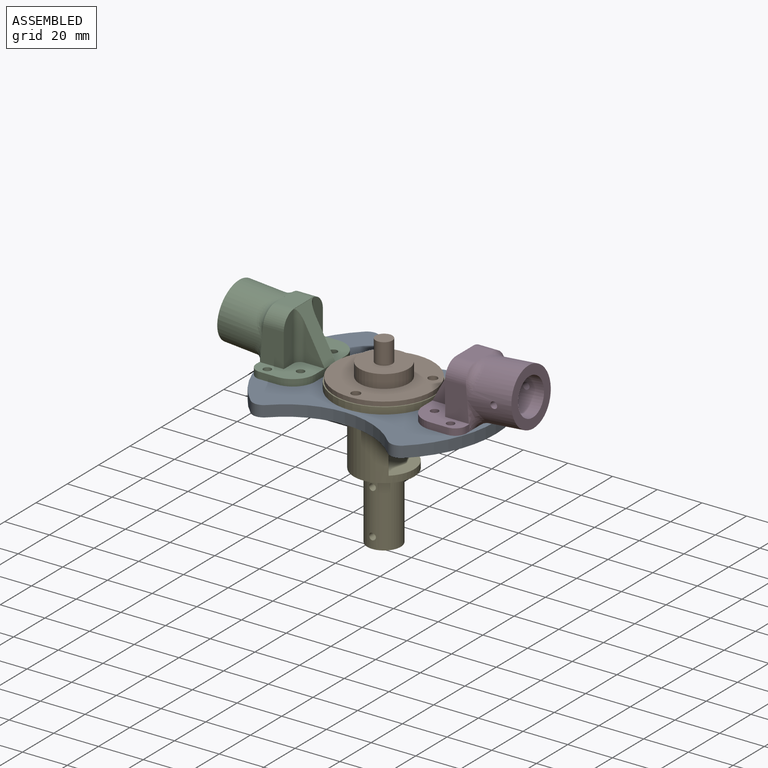
[diagram: assembled view]
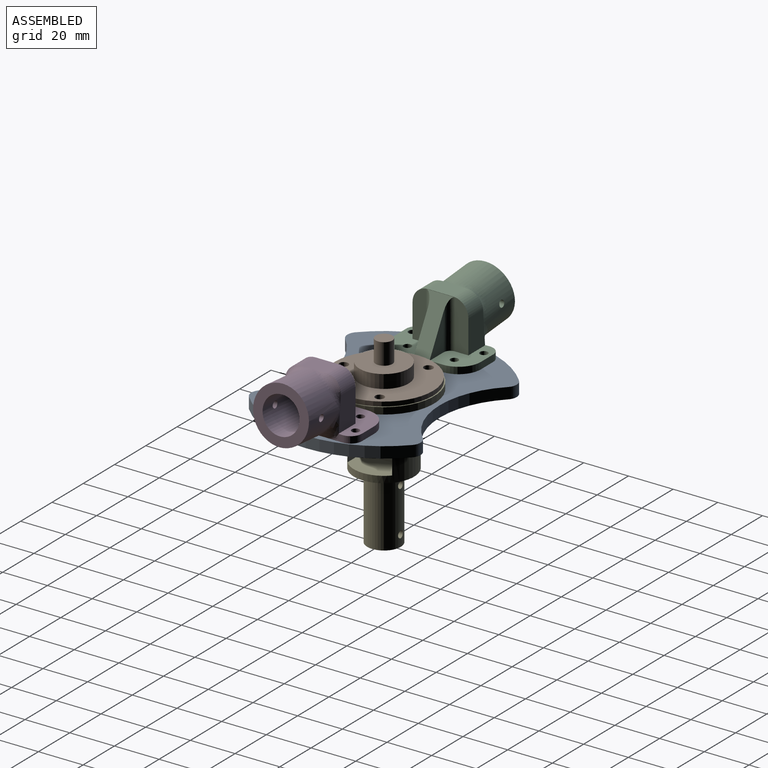
[diagram: assembled view, second angle]
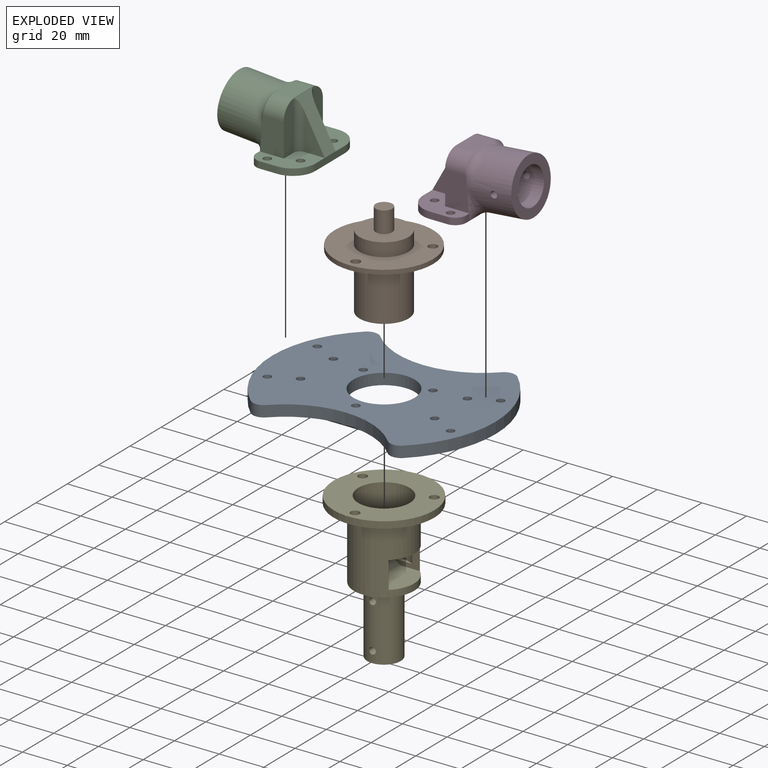
[diagram: exploded view]
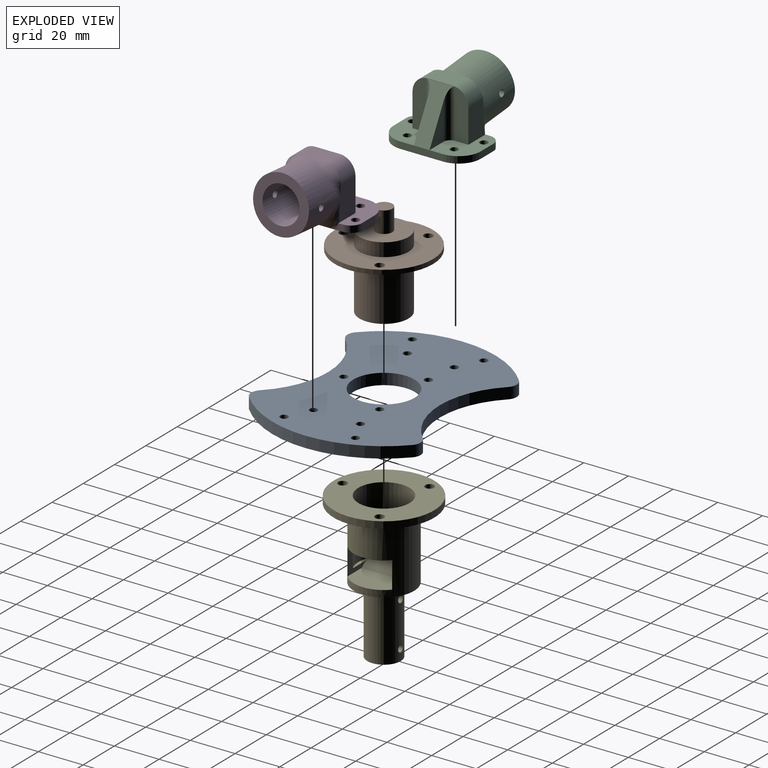
[diagram: exploded view, second angle]
ASSEMBLY  parts=5 mates=4
PART A: 22 faces, bbox 75.8x100x5 mm
  f0: cylinder r=50mm len=73.07mm, axis (0,0,-1), area 409.7mm2, adj f1,f2,f19,f20
  f1: plane 100x75.77mm, normal (0,0,1), area 5047.6mm2, adj f0,f3,f4,f5,f6,f7,f8,f9
  f2: plane 100x75.77mm, normal (0,0,-1), area 5047.6mm2, adj f0,f3,f4,f5,f6,f7,f8,f9
  f3: cylinder r=13.75mm len=27.5mm, axis (0,0,-1), area 432mm2, adj f1,f2
  f4: cylinder r=50mm len=73.07mm, axis (0,0,-1), area 409.7mm2, adj f1,f2,f18,f21
  f5: cylinder r=1.75mm len=5mm, axis (0,0,1), area 55mm2, adj f1,f2
  f6: cylinder r=1.75mm len=5mm, axis (0,0,1), area 55mm2, adj f1,f2
  f7: cylinder r=1.75mm len=5mm, axis (0,0,1), area 55mm2, adj f1,f2
  f8: cylinder r=1.75mm len=5mm, axis (0,0,1), area 55mm2, adj f1,f2
  f9: cylinder r=1.75mm len=5mm, axis (0,0,1), area 55mm2, adj f1,f2
  f10: cylinder r=1.75mm len=5mm, axis (0,0,1), area 55mm2, adj f1,f2
  f11: cylinder r=1.75mm len=5mm, axis (0,0,1), area 55mm2, adj f1,f2
  f12: cylinder r=1.75mm len=5mm, axis (0,0,1), area 55mm2, adj f1,f2
  f13: cylinder r=1.75mm len=5mm, axis (0,0,1), area 55mm2, adj f1,f2
  f14: cylinder r=1.75mm len=5mm, axis (0,0,1), area 55mm2, adj f1,f2
  f15: cylinder r=1.75mm len=5mm, axis (0,0,1), area 55mm2, adj f1,f2
  f16: cylinder r=38.07mm len=54.31mm, axis (0,0,1), area 302.3mm2, adj f1,f2,f18,f19
  f17: cylinder r=38.07mm len=54.31mm, axis (0,0,1), area 302.3mm2, adj f1,f2,f20,f21
  f18: cylinder r=5mm len=6.98mm, axis (0,0,-1), area 38.6mm2, adj f1,f2,f4,f16
  f19: cylinder r=5mm len=6.98mm, axis (0,0,-1), area 38.6mm2, adj f0,f1,f2,f16
  f20: cylinder r=5mm len=6.98mm, axis (0,0,-1), area 38.6mm2, adj f0,f1,f2,f17
  f21: cylinder r=5mm len=6.98mm, axis (0,0,-1), area 38.6mm2, adj f1,f2,f4,f17
PART B: 12 faces, bbox 44x44x42.5 mm
  f0: cylinder r=11mm len=22mm, axis (0,0,-1), area 414.7mm2, adj f1,f6
  f1: plane 22x22mm, normal (0,0,-1), area 336mm2, adj f0,f2
  f2: cylinder r=3.75mm len=9.5mm, axis (0,0,1), area 223.8mm2, adj f1,f3
  f3: plane 7.5x7.5mm, normal (0,0,-1), area 44.2mm2, adj f2
  f4: cylinder r=22mm len=44mm, axis (0,0,-1), area 276.5mm2, adj f5,f6
  f5: plane 44x44mm, normal (0,0,1), area 1102.7mm2, adj f4,f8,f9,f10,f11
  f6: plane 44x44mm, normal (0,0,-1), area 1102.7mm2, adj f0,f4,f9,f10,f11
  f7: plane 22x22mm, normal (0,0,1), area 380.1mm2, adj f8
  f8: cylinder r=11mm len=25mm, axis (0,0,-1), area 1727.9mm2, adj f5,f7
  f9: cylinder r=2mm len=4mm, axis (0,0,-1), area 25.1mm2, adj f5,f6
  f10: cylinder r=2mm len=4mm, axis (0,0,-1), area 25.1mm2, adj f5,f6
  f11: cylinder r=2mm len=4mm, axis (0,0,-1), area 25.1mm2, adj f5,f6
PART C: 47 faces, bbox 44.5x40.7x28.4 mm
  f0: plane 25x22mm, normal (1,0,0), area 244.4mm2, adj f1,f3,f4,f7,f13,f14,f18,f42
  f1: plane 22.89x16mm, normal (0,0,1), area 220.3mm2, adj f0,f2,f4,f15,f16,f17,f24,f25
  f2: plane 19x3mm, normal (1,0,0), area 57mm2, adj f1,f8,f18,f42,f45,f46
  f3: plane 16.02x11.65mm, normal (0,-1,0), area 149.6mm2, adj f0,f14,f18,f28,f35
  f4: plane 16.02x11.65mm, normal (0,1,0), area 149.6mm2, adj f0,f1,f13,f32,f36
  f5: plane 0.35x0.35mm, normal (-1,0,0.09), area 0.1mm2, adj f8,f19,f29
  f6: plane 0.35x0.35mm, normal (-1,0,0.09), area 0.1mm2, adj f8,f15,f31
  f7: plane 12.67x10.37mm, normal (0,0,1), area 95.8mm2, adj f0,f13,f14,f33,f38
  f8: plane 39.76x23.66mm, normal (0,0,-1), area 800.8mm2, adj f2,f5,f6,f16,f17,f20,f21,f22
  f9: cylinder r=8.25mm len=21.36mm, axis (1,0,-0.09), area 1029.5mm2, adj f11,f12,f39
  f10: cylinder r=12.5mm len=26.65mm, axis (1,0,-0.09), area 1327.5mm2, adj f11,f28,f29,f30,f31,f32,f33,f34
  f11: plane 25x24.91mm, normal (-1,0,0.09), area 277mm2, adj f9,f10
  f12: plane 16.5x16.44mm, normal (-1,0,0.09), area 213.8mm2, adj f9
  f13: cylinder r=7mm len=9.32mm, axis (-1,0,0), area 99.1mm2, adj f0,f4,f7,f37
  f14: cylinder r=7mm len=9.32mm, axis (1,0,0), area 99.1mm2, adj f0,f3,f7,f34
  f15: plane 3.08x0.35mm, normal (0,-1,0), area 0.4mm2, adj f1,f6,f16,f32
  f16: plane 3x2mm, normal (-1,0,0), area 6mm2, adj f1,f8,f15,f27
  f17: plane 7.89x3mm, normal (0,1,0), area 23.7mm2, adj f1,f8,f27,f46
  f18: plane 22.89x16mm, normal (0,0,1), area 220.3mm2, adj f0,f2,f3,f19,f20,f21,f22,f23
  f19: plane 3.08x0.35mm, normal (0,1,0), area 0.4mm2, adj f5,f18,f21,f28
  f20: plane 7.89x3mm, normal (0,-1,0), area 23.7mm2, adj f8,f18,f26,f45
  f21: plane 3x2mm, normal (-1,0,0), area 6mm2, adj f8,f18,f19,f26
  f22: cylinder r=1.75mm len=3.5mm, axis (0,0,1), area 33mm2, adj f8,f18
  f23: cylinder r=1.75mm len=3.5mm, axis (0,0,1), area 33mm2, adj f8,f18
  f24: cylinder r=1.75mm len=3.5mm, axis (0,0,1), area 33mm2, adj f1,f8
  f25: cylinder r=1.75mm len=3.5mm, axis (0,0,1), area 33mm2, adj f1,f8
  f26: cylinder r=5mm len=5mm, axis (0,0,1), area 23.6mm2, adj f8,f18,f20,f21
  f27: cylinder r=5mm len=5mm, axis (0,0,1), area 23.6mm2, adj f1,f8,f16,f17
  f28: bspline ~12.57x5.76mm, area 38.1mm2, adj f3,f10,f19,f29
  f29: torus R=17.5mm, axis (-1,0,0.09), area 3.2mm2, adj f5,f10,f28,f30
  f30: bspline ~25.66x5.71mm, area 79mm2, adj f8,f10,f29,f31
  f31: torus R=17.5mm, axis (-1,0,0.09), area 3.2mm2, adj f6,f10,f30,f32
  f32: bspline ~12.57x5.76mm, area 38.1mm2, adj f4,f10,f15,f31
  f33: bspline ~6.88x3.56mm, area 5.4mm2, adj f7,f10,f34
  f34: bspline ~8.57x8.31mm, area 48.9mm2, adj f10,f14,f33,f35
  f35: bspline ~6.86x3.64mm, area 5.3mm2, adj f3,f10,f34
  f36: bspline ~6.86x3.64mm, area 5.3mm2, adj f4,f10,f37
  f37: bspline ~9.05x8.45mm, area 48.9mm2, adj f10,f13,f36,f38
  f38: bspline ~5.5x2.89mm, area 5.4mm2, adj f7,f10,f37
  f39: cylinder r=1.5mm len=4.26mm, axis (0,-1,0), area 40.1mm2, adj f9,f10
  f40: plane 16.42x9mm, normal (0,1,0), area 73.9mm2, adj f1,f42,f43
  f41: plane 16.42x9mm, normal (0,-1,0), area 73.9mm2, adj f18,f42,f44
  f42: plane 21.89x13mm, normal (0.88,0,0.48), area 182.8mm2, adj f0,f2,f40,f41,f43,f44
  f43: cylinder r=3mm len=21.89mm, axis (0,0,1), area 93.8mm2, adj f0,f1,f40,f42
  f44: cylinder r=3mm len=21.89mm, axis (0,0,-1), area 93.8mm2, adj f0,f18,f41,f42
  f45: cylinder r=10mm len=10mm, axis (0,0,-1), area 47.1mm2, adj f2,f8,f18,f20
  f46: cylinder r=10mm len=10mm, axis (0,0,1), area 47.1mm2, adj f1,f2,f8,f17
PART D: 48 faces, bbox 44.5x40.7x28.4 mm
  f0: plane 25x22mm, normal (1,0,0), area 244.4mm2, adj f1,f3,f4,f7,f13,f14,f18,f43
  f1: plane 22.89x16mm, normal (0,0,1), area 220.3mm2, adj f0,f2,f4,f15,f16,f17,f24,f25
  f2: plane 19x3mm, normal (1,0,0), area 57mm2, adj f1,f8,f18,f43,f46,f47
  f3: plane 16.02x11.65mm, normal (0,-1,0), area 149.6mm2, adj f0,f14,f18,f30,f31
  f4: plane 16.02x11.65mm, normal (0,1,0), area 149.6mm2, adj f0,f1,f13,f35,f36
  f5: plane 0.35x0.35mm, normal (-1,0,0.09), area 0.1mm2, adj f8,f19,f32
  f6: plane 0.35x0.35mm, normal (-1,0,0.09), area 0.1mm2, adj f8,f15,f34
  f7: plane 12.67x10.37mm, normal (0,0,1), area 95.8mm2, adj f0,f13,f14,f28,f38
  f8: plane 39.76x23.66mm, normal (0,0,-1), area 800.8mm2, adj f2,f5,f6,f16,f17,f20,f21,f22
  f9: cylinder r=8.25mm len=21.36mm, axis (1,0,-0.09), area 1022.5mm2, adj f11,f12,f39,f40
  f10: cylinder r=12.5mm len=26.65mm, axis (1,0,-0.09), area 1320.4mm2, adj f11,f28,f29,f30,f31,f32,f33,f34
  f11: plane 25x24.91mm, normal (-1,0,0.09), area 277mm2, adj f9,f10
  f12: plane 16.5x16.44mm, normal (-1,0,0.09), area 213.8mm2, adj f9
  f13: cylinder r=7mm len=9.32mm, axis (-1,0,0), area 99.1mm2, adj f0,f4,f7,f37
  f14: cylinder r=7mm len=9.32mm, axis (1,0,0), area 99.1mm2, adj f0,f3,f7,f29
  f15: plane 3.08x0.35mm, normal (0,-1,0), area 0.4mm2, adj f1,f6,f16,f35
  f16: plane 3x2mm, normal (-1,0,0), area 6mm2, adj f1,f8,f15,f27
  f17: plane 7.89x3mm, normal (0,1,0), area 23.7mm2, adj f1,f8,f27,f47
  f18: plane 22.89x16mm, normal (0,0,1), area 220.3mm2, adj f0,f2,f3,f19,f20,f21,f22,f23
  f19: plane 3.08x0.35mm, normal (0,1,0), area 0.4mm2, adj f5,f18,f21,f31
  f20: plane 7.89x3mm, normal (0,-1,0), area 23.7mm2, adj f8,f18,f26,f46
  f21: plane 3x2mm, normal (-1,0,0), area 6mm2, adj f8,f18,f19,f26
  f22: cylinder r=1.75mm len=3.5mm, axis (0,0,1), area 33mm2, adj f8,f18
  f23: cylinder r=1.75mm len=3.5mm, axis (0,0,1), area 33mm2, adj f8,f18
  f24: cylinder r=1.75mm len=3.5mm, axis (0,0,1), area 33mm2, adj f1,f8
  f25: cylinder r=1.75mm len=3.5mm, axis (0,0,1), area 33mm2, adj f1,f8
  f26: cylinder r=5mm len=5mm, axis (0,0,1), area 23.6mm2, adj f8,f18,f20,f21
  f27: cylinder r=5mm len=5mm, axis (0,0,1), area 23.6mm2, adj f1,f8,f16,f17
  f28: bspline ~6.88x3.56mm, area 5.4mm2, adj f7,f10,f29
  f29: bspline ~8.57x8.31mm, area 48.9mm2, adj f10,f14,f28,f30
  f30: bspline ~6.86x3.64mm, area 5.3mm2, adj f3,f10,f29
  f31: bspline ~12.57x5.76mm, area 38.1mm2, adj f3,f10,f19,f32
  f32: torus R=17.5mm, axis (-1,0,0.09), area 3.2mm2, adj f5,f10,f31,f33
  f33: bspline ~25.66x5.71mm, area 79mm2, adj f8,f10,f32,f34
  f34: torus R=17.5mm, axis (-1,0,0.09), area 3.2mm2, adj f6,f10,f33,f35
  f35: bspline ~12.57x5.76mm, area 38.1mm2, adj f4,f10,f15,f34
  f36: bspline ~6.86x3.64mm, area 5.3mm2, adj f4,f10,f37
  f37: bspline ~9.05x8.45mm, area 48.9mm2, adj f10,f13,f36,f38
  f38: bspline ~5.5x2.89mm, area 5.4mm2, adj f7,f10,f37
  f39: cylinder r=1.5mm len=4.3mm, axis (0,-1,0), area 40.6mm2, adj f9,f10
  f40: cylinder r=1.5mm len=4.4mm, axis (0,-1,0), area 41mm2, adj f9,f10
  f41: plane 16.42x9mm, normal (0,1,0), area 73.9mm2, adj f1,f43,f44
  f42: plane 16.42x9mm, normal (0,-1,0), area 73.9mm2, adj f18,f43,f45
  f43: plane 21.89x13mm, normal (0.88,0,0.48), area 182.8mm2, adj f0,f2,f41,f42,f44,f45
  f44: cylinder r=3mm len=21.89mm, axis (0,0,1), area 93.8mm2, adj f0,f1,f41,f43
  f45: cylinder r=3mm len=21.89mm, axis (0,0,-1), area 93.8mm2, adj f0,f18,f42,f43
  f46: cylinder r=10mm len=10mm, axis (0,0,-1), area 47.1mm2, adj f2,f8,f18,f20
  f47: cylinder r=10mm len=10mm, axis (0,0,1), area 47.1mm2, adj f1,f2,f8,f17
PART E: 20 faces, bbox 45x45x65 mm
  f0: cylinder r=7.5mm len=28mm, axis (0,0,-1), area 1290.9mm2, adj f11,f16,f18,f19
  f1: cylinder r=11.5mm len=30mm, axis (0,0,1), area 1925.2mm2, adj f3,f5,f12,f14,f15
  f2: cylinder r=13.5mm len=32mm, axis (0,0,-1), area 2444.1mm2, adj f6,f10,f12,f13,f14,f15
  f3: plane 23x17.18mm, normal (0,0,-1), area 139.3mm2, adj f1,f14,f15,f17
  f4: cylinder r=22.5mm len=45mm, axis (0,0,1), area 424.1mm2, adj f5,f6
  f5: plane 45x45mm, normal (0,0,-1), area 1137.3mm2, adj f1,f4,f7,f8,f9
  f6: plane 45x45mm, normal (0,0,1), area 980.2mm2, adj f2,f4,f7,f8,f9
  f7: cylinder r=2mm len=4mm, axis (0,0,1), area 37.7mm2, adj f5,f6
  f8: cylinder r=2mm len=4mm, axis (0,0,1), area 37.7mm2, adj f5,f6
  f9: cylinder r=2mm len=4mm, axis (0,0,1), area 37.7mm2, adj f5,f6
  f10: plane 27x27mm, normal (0,0,1), area 289mm2, adj f2,f16
  f11: plane 15x15mm, normal (0,0,1), area 176.7mm2, adj f0
  f12: plane 20x7.82mm, normal (0,0,1), area 46.5mm2, adj f1,f2,f14,f15
  f13: plane 20x13.5mm, normal (0,0,-1), area 242.7mm2, adj f2,f14,f15,f17
  f14: plane 13.07x12mm, normal (0,1,0), area 54.4mm2, adj f1,f2,f3,f12,f13,f17
  f15: plane 13.07x12mm, normal (0,-1,0), area 54.4mm2, adj f1,f2,f3,f12,f13,f17
  f16: torus R=9.5mm, axis (0,0,1), area 162.4mm2, adj f0,f10
  f17: cylinder r=5mm len=20mm, axis (0,1,0), area 92.7mm2, adj f3,f13,f14,f15
  f18: cylinder r=1.5mm len=15mm, axis (0,1,0), area 139.9mm2, adj f0
  f19: cylinder r=1.5mm len=15mm, axis (0,1,0), area 139.9mm2, adj f0
PLACE A rot(axis=(0,0,1),90deg) t=(44.1,-80.47,-25.42)mm
PLACE B rot(axis=(1,0,0),180deg) t=(44.1,-80.47,-9.42)mm
PLACE C t=(8,-80.47,-7.92)mm
PLACE D rot(axis=(0,0,1),180deg) t=(80.21,-80.47,-7.92)mm
PLACE E rot(axis=(0,1,0),180deg) t=(44.1,-80.47,-20.42)mm
MATE fastened E.f1 <-> B.f0  axis (0,0,1) through (44.1,-80.47,-17.42)mm
MATE fastened A.f10 <-> D.f22  axis (0,0,1) through (85.1,-64.47,-20.42)mm
MATE fastened A.f14 <-> C.f24  axis (0,0,1) through (3.1,-64.47,-20.42)mm
MATE fastened E.f4 <-> A.f3  axis (0,0,-1) through (44.1,-80.47,-20.42)mm
